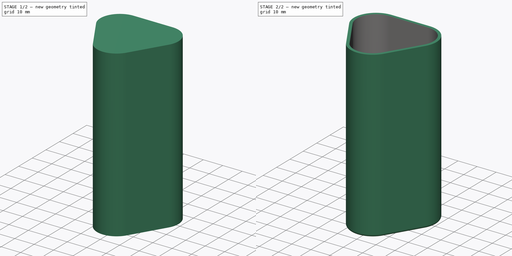
[diagram: build sequence overview — one tinted view per stage of 2, left to right]
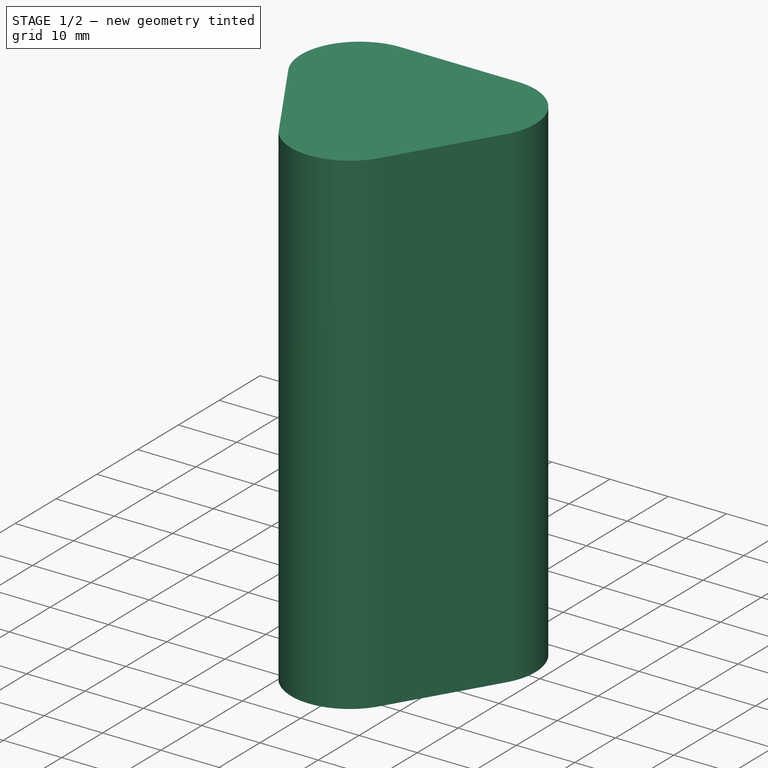
[diagram: stage 1 of 2 — iso view after this stage's code; geometry added in this stage tinted green]
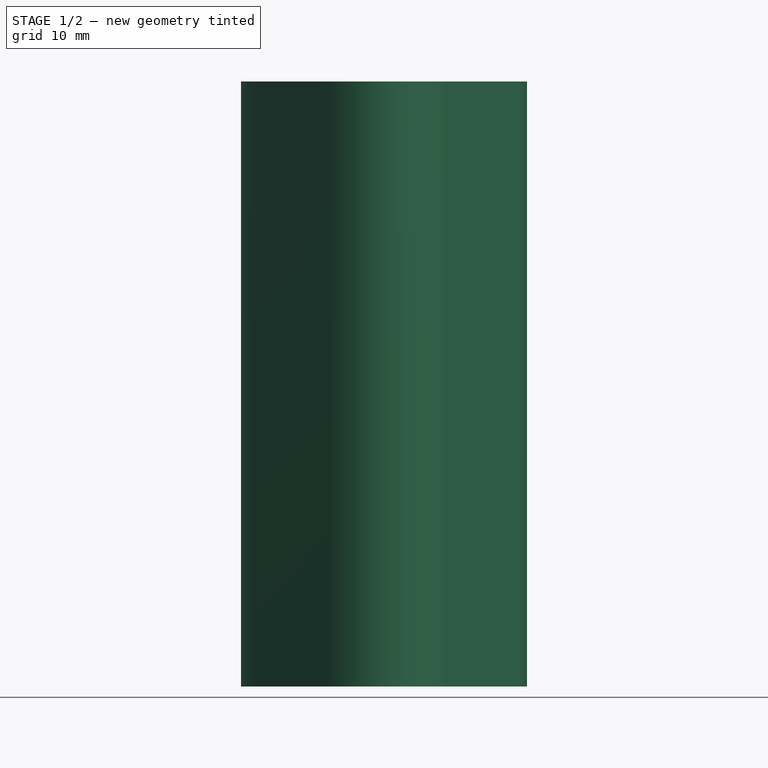
[diagram: stage 1 of 2 — front view after this stage's code; geometry added in this stage tinted green]
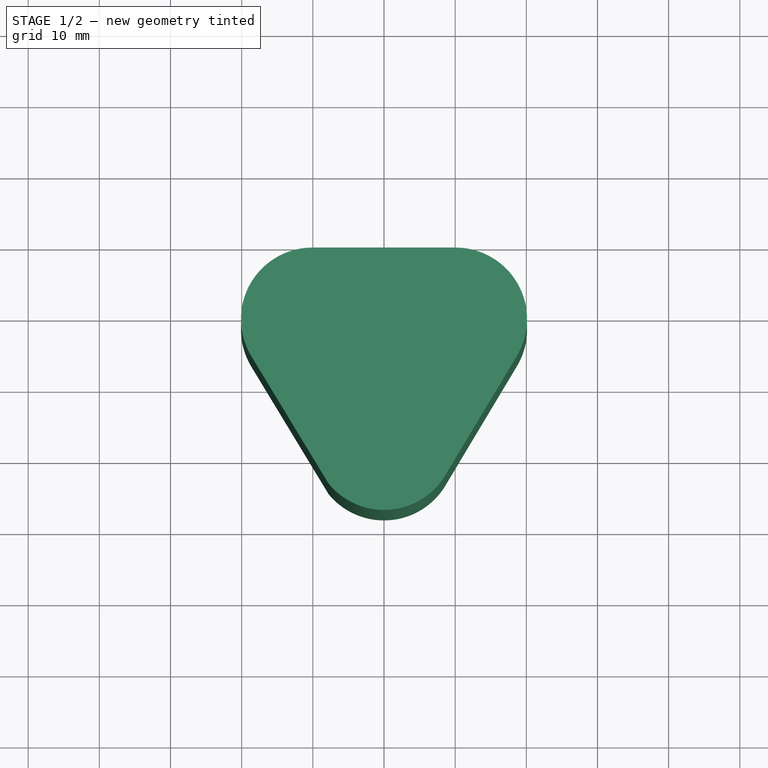
[diagram: stage 1 of 2 — top view after this stage's code; geometry added in this stage tinted green]
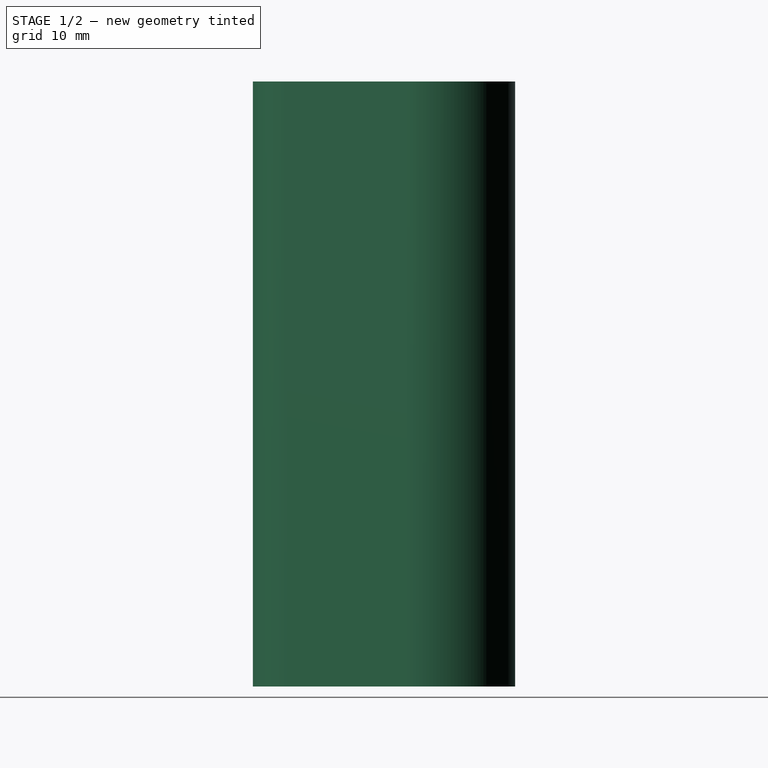
[diagram: stage 1 of 2 — right view after this stage's code; geometry added in this stage tinted green]
FCSTD DOCUMENT  (FreeCAD 0.19R24267 +148 (Git))
Label: BaterryContainer
License: All rights reserved
LicenseURL: http://en.wikipedia.org/wiki/All_rights_reserved
objects: Sketcher::SketchObject×1, PartDesign::Pad×1, PartDesign::Thickness×1, PartDesign::Body×1
note: 6 computed .brp shape members not serialized (recipe doc carries the construction recipe); baked Part::Feature solids carry a one-line shape summary decoded from their .brp

FEATURE [Sketcher::SketchObject] Sketch
  FullyConstrained = false
  MapMode = 5
  Support = -> [XY_Plane]
  sketch-geometry (6):
    g0: ArcOfCircle CenterX=-10.05 CenterY=18.782 CenterZ=0 NormalX=0 NormalY=0 NormalZ=1 AngleXU=0 Radius=10.05 StartAngle=1.5708 EndAngle=3.68642
    g1: ArcOfCircle CenterX=10.05 CenterY=18.782 CenterZ=0 NormalX=0 NormalY=0 NormalZ=1 AngleXU=0 Radius=10.05 StartAngle=5.7432 EndAngle=7.85398
    g2: ArcOfCircle CenterX=0 CenterY=2.01532 CenterZ=0 NormalX=0 NormalY=0 NormalZ=1 AngleXU=0 Radius=10.05 StartAngle=3.8238 EndAngle=5.74255
    g3: LineSegment StartX=10.05 StartY=28.832 StartZ=0 EndX=-10.05 EndY=28.832 EndZ=0
    g4: LineSegment StartX=8.61668 StartY=-3.15725 StartZ=0 EndX=18.6701 EndY=13.6151 EndZ=0
    g5: LineSegment StartX=-18.6449 StartY=13.5734 StartZ=0 EndX=-7.80063 EndY=-4.3213 EndZ=0
  constraints (14):
    c: Symmetric(g0,g1,g-2)
    c: PointOnObject(g2,g-2)
    c: Equal(g1,g0)
    c: Radius(g1) = 10.05
    c: Radius(g2) = 10.05
    c: Tangent(g1,g-2)
    c: Horizontal(g3)
    c: PointOnObject(g4,g2)
    c: Tangent(g1,g4) = -1.5708
    c: Coincident(g2,g5)
    c: PointOnObject(g2,g4)
    c: Tangent(g0,g5) = -1.5708
    c: Tangent(g0,g3) = -1.5708
    c: Coincident(g1,g3)
FEATURE [PartDesign::Pad] Pad
  Direction = (1,1,1)
  Length = 85
  Length2 = 100
  Profile = -> Sketch
  Type = 0
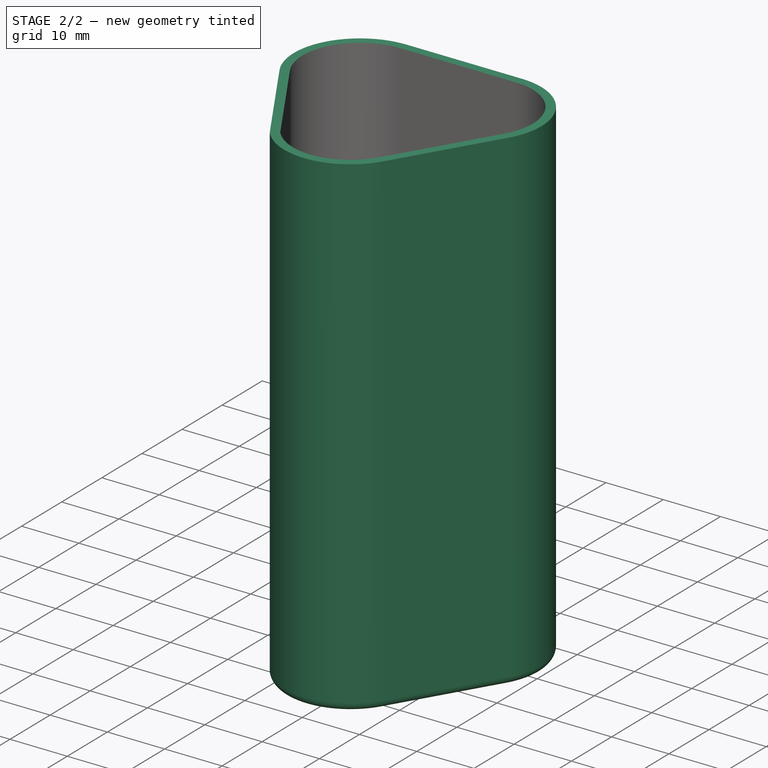
[diagram: stage 2 of 2 — iso view after this stage's code; geometry added in this stage tinted green]
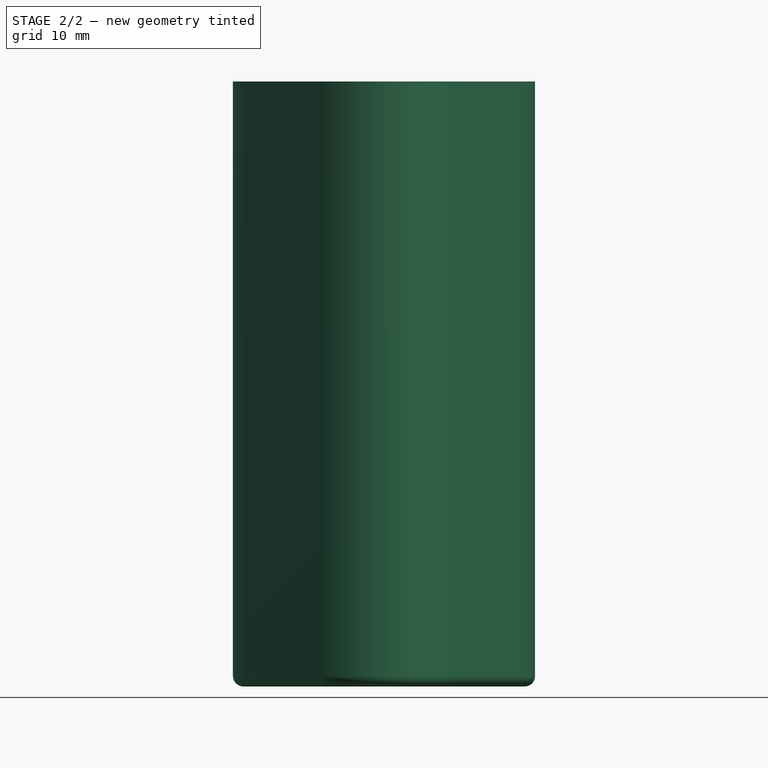
[diagram: stage 2 of 2 — front view after this stage's code; geometry added in this stage tinted green]
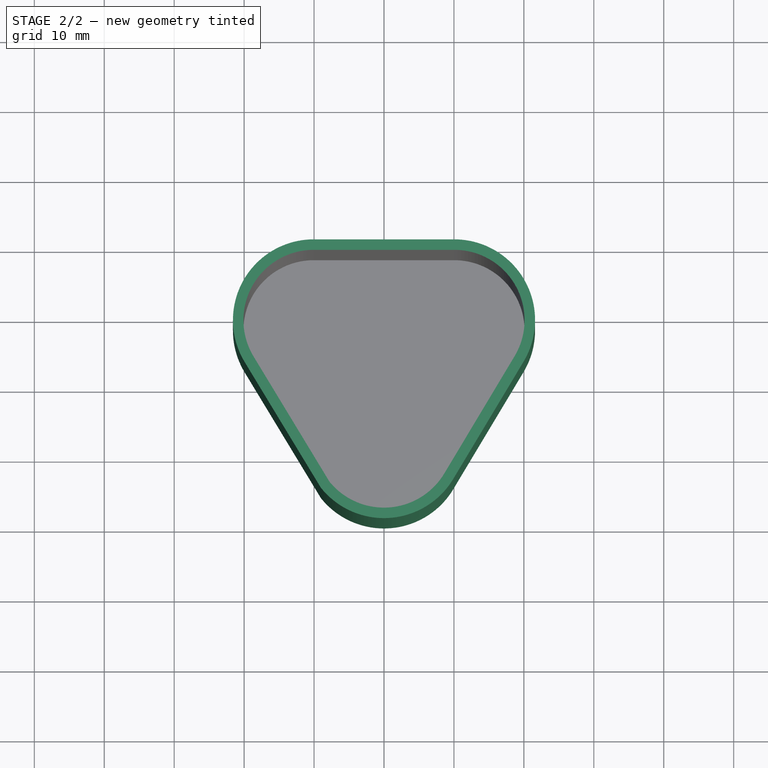
[diagram: stage 2 of 2 — top view after this stage's code; geometry added in this stage tinted green]
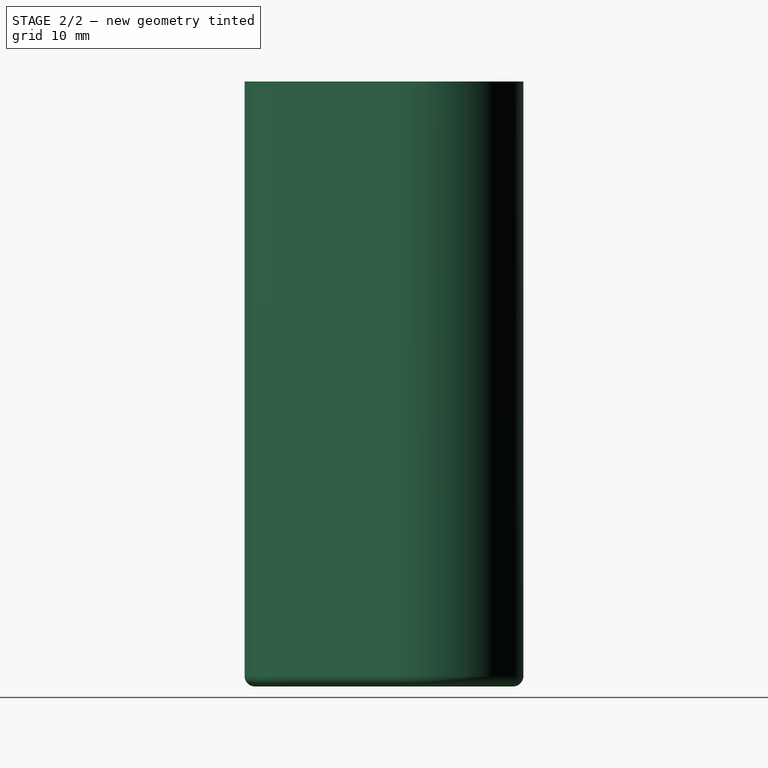
[diagram: stage 2 of 2 — right view after this stage's code; geometry added in this stage tinted green]
FEATURE [PartDesign::Thickness] Thickness
  Base = -> Pad [Face8]
  BaseFeature = -> Pad
  Intersection = false
  Join = 0
  Mode = 1
  SupportTransform = false
  Value = 1.5
FEATURE [PartDesign::Body] Body
  Group = -> [Sketch,Pad,Thickness]
  Origin = -> Origin
  Tip = -> Thickness
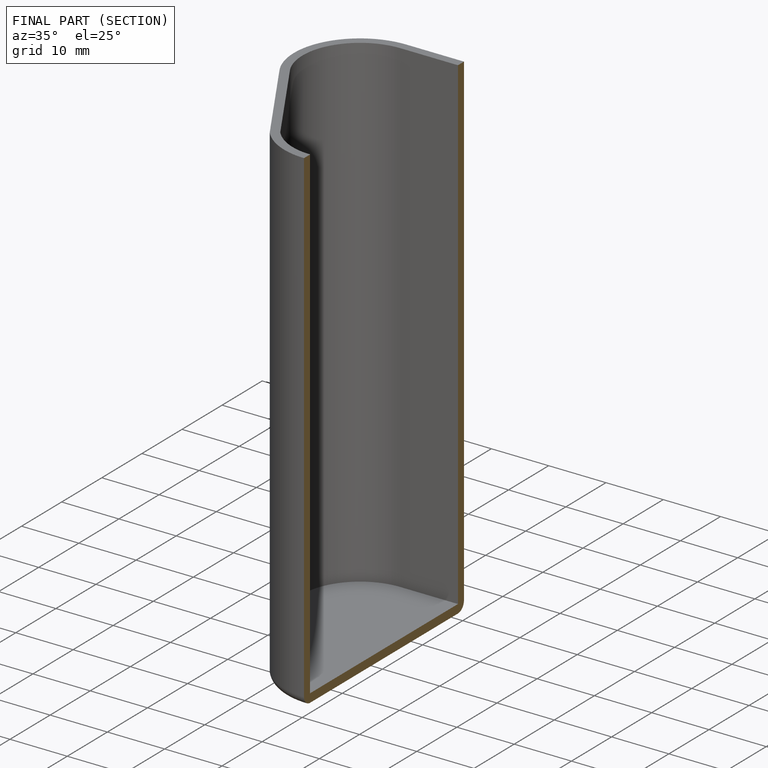
[diagram: finished part — half-section view (interior)]
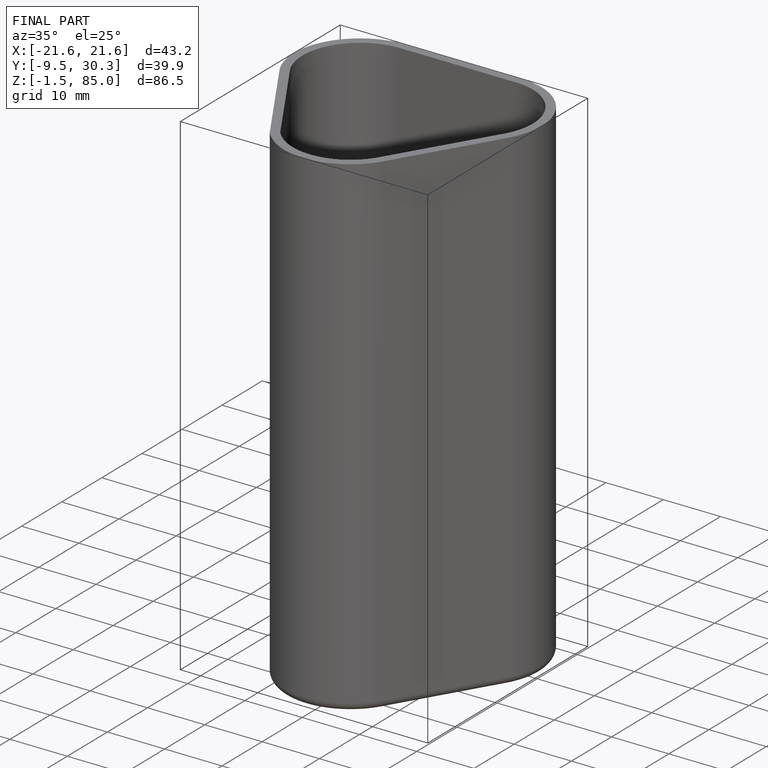
[diagram: finished part — iso view with bounding-box wireframe]
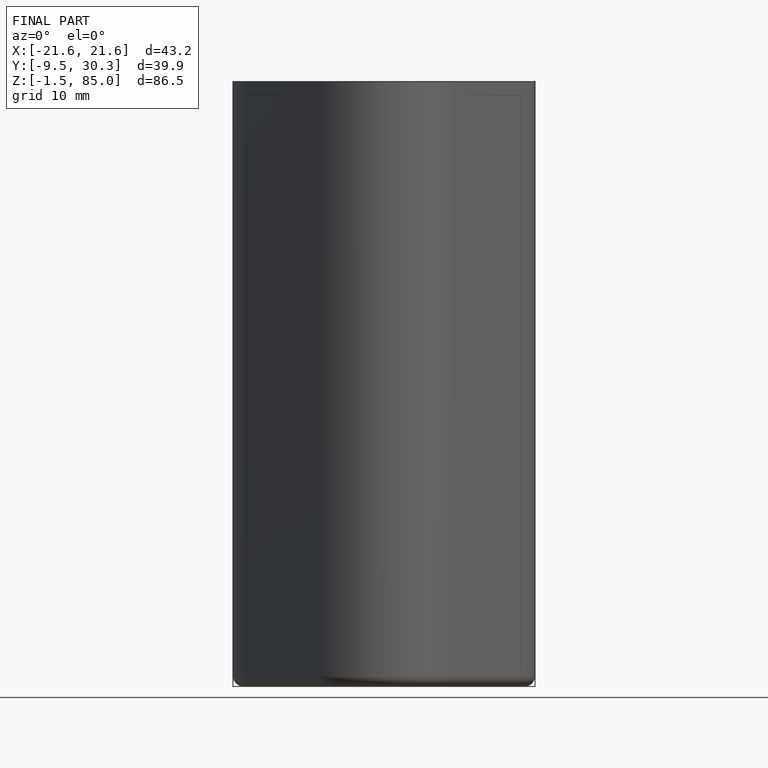
[diagram: finished part — front view with bounding-box wireframe]
